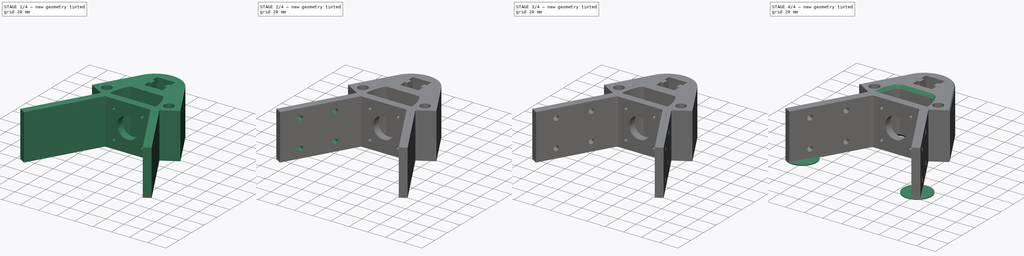
[diagram: build sequence overview — one tinted view per stage of 4, left to right]
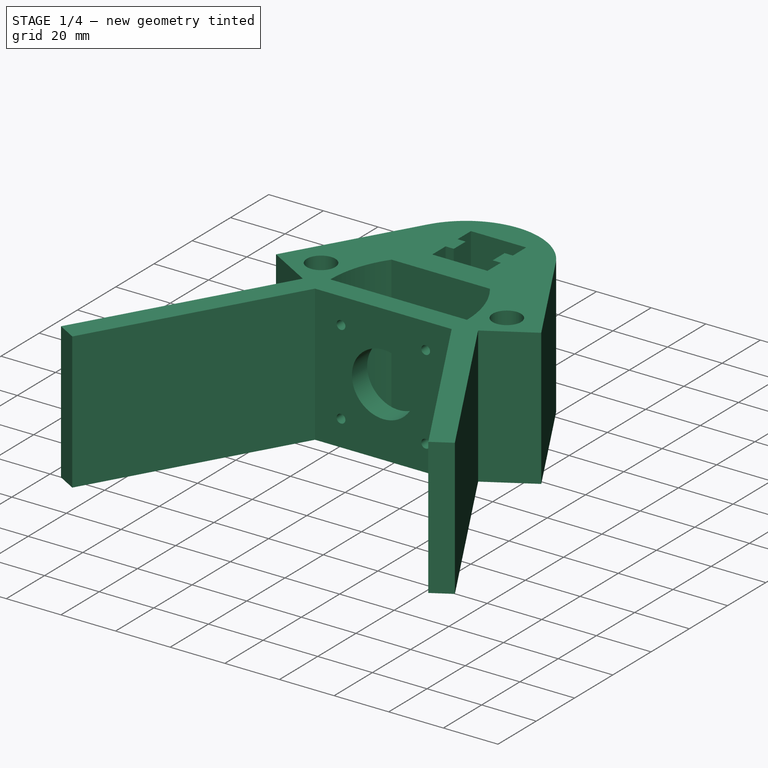
[diagram: stage 1 of 4 — iso view after this stage's code; geometry added in this stage tinted green]
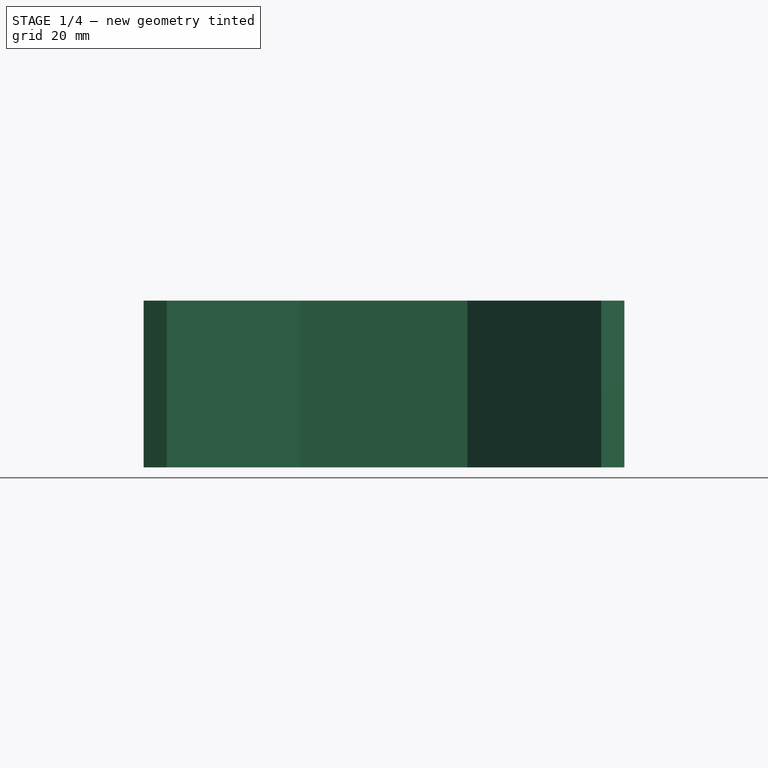
[diagram: stage 1 of 4 — front view after this stage's code; geometry added in this stage tinted green]
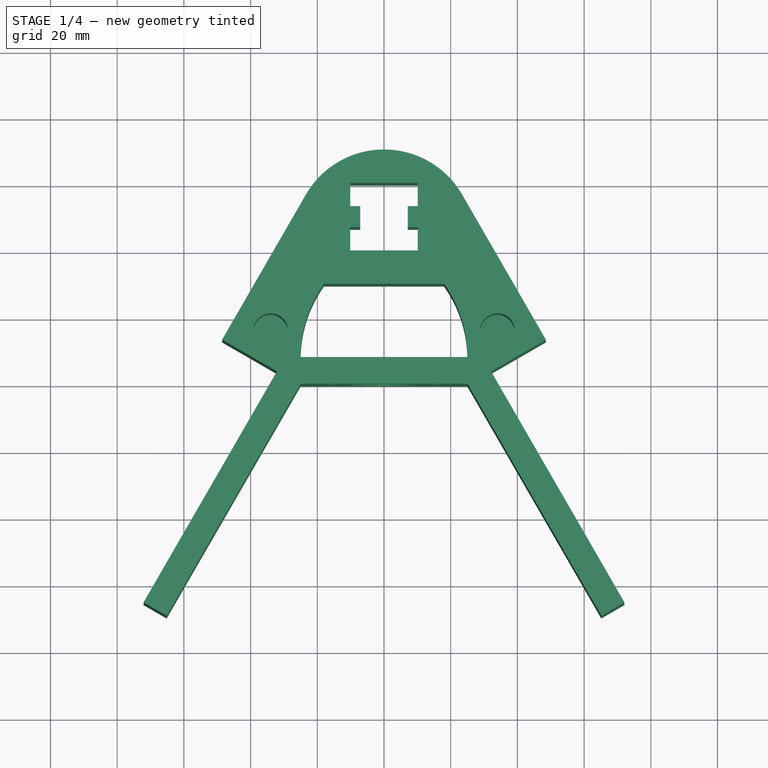
[diagram: stage 1 of 4 — top view after this stage's code; geometry added in this stage tinted green]
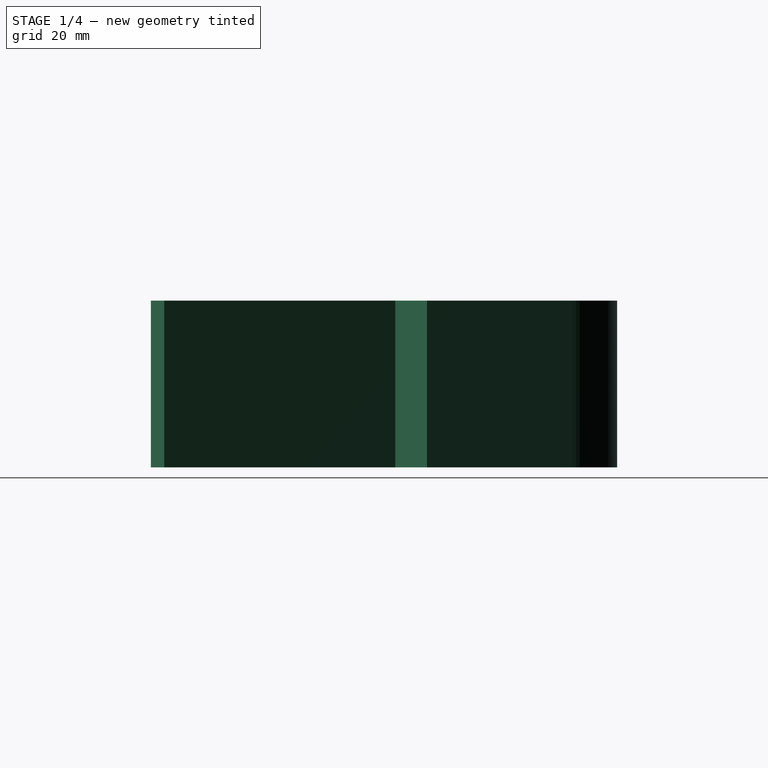
[diagram: stage 1 of 4 — right view after this stage's code; geometry added in this stage tinted green]
FCSTD DOCUMENT  (FreeCAD 0.16R6706 (Git))
Label: frame_bottom
License: All rights reserved
LicenseURL: http://en.wikipedia.org/wiki/All_rights_reserved
objects: Sketcher::SketchObject×8, PartDesign::Pocket×6, PartDesign::Pad×2, PartDesign::Fillet×2, PartDesign::Chamfer×1
note: 27 computed .brp shape members not serialized (recipe doc carries the construction recipe); baked Part::Feature solids carry a one-line shape summary decoded from their .brp

FEATURE [Sketcher::SketchObject] Sketch
  sketch-geometry (45):
    g0: LineSegment StartX=-72.0875 StartY=-65.5579 StartZ=0 EndX=-32.0875 EndY=3.72411 EndZ=0
    g1: LineSegment StartX=-32.0875 StartY=3.72411 StartZ=0 EndX=-48.542 EndY=13.2241 EndZ=0
    g2: LineSegment StartX=48.542 StartY=13.2241 StartZ=0 EndX=32.0875 EndY=3.72411 EndZ=0
    g3: LineSegment StartX=32.0875 StartY=3.72411 StartZ=0 EndX=72.0875 EndY=-65.5579 EndZ=0
    g4: LineSegment StartX=72.0875 StartY=-65.5579 StartZ=0 EndX=65.1593 EndY=-69.5579 EndZ=0
    g5: LineSegment StartX=65.1593 StartY=-69.5579 StartZ=0 EndX=25 EndY=0 EndZ=0
    g6: LineSegment StartX=25 StartY=0 StartZ=0 EndX=-25 EndY=0 EndZ=0
    g7: LineSegment StartX=-25 StartY=0 StartZ=0 EndX=-65.1593 EndY=-69.5579 EndZ=0
    g8: LineSegment StartX=-65.1593 StartY=-69.5579 StartZ=0 EndX=-72.0875 EndY=-65.5579 EndZ=0
    g9: LineSegment StartX=-25 StartY=8 StartZ=0 EndX=25 EndY=8 EndZ=0
    g10: LineSegment [constr] StartX=25 StartY=8 StartZ=0 EndX=18 EndY=30 EndZ=0
    g11: LineSegment StartX=18 StartY=30 StartZ=0 EndX=-18 EndY=30 EndZ=0
    g12: LineSegment [constr] StartX=-18 StartY=30 StartZ=0 EndX=-25 EndY=8 EndZ=0
    g13: LineSegment StartX=-10.125 StartY=60.25 StartZ=0 EndX=10.125 EndY=60.25 EndZ=0
    g14: LineSegment StartX=10.125 StartY=60.25 StartZ=0 EndX=10.125 EndY=53.25 EndZ=0
    g15: LineSegment StartX=10.125 StartY=40 StartZ=0 EndX=-10.125 EndY=40 EndZ=0
    g16: LineSegment StartX=-10.125 StartY=40 StartZ=0 EndX=-10.125 EndY=47 EndZ=0
    g17: LineSegment [constr] StartX=-25 StartY=8 StartZ=0 EndX=-25 EndY=0 EndZ=0
    g18: LineSegment [constr] StartX=-21 StartY=0 StartZ=0 EndX=-2.5 EndY=0 EndZ=0
    g19: LineSegment [constr] StartX=21 StartY=0 StartZ=0 EndX=21 EndY=-47 EndZ=0
    g20: LineSegment [constr] StartX=21 StartY=-47 StartZ=0 EndX=-21 EndY=-47 EndZ=0
    g21: LineSegment [constr] StartX=-21 StartY=-47 StartZ=0 EndX=-21 EndY=0 EndZ=0
    g22: LineSegment [constr] StartX=-2.5 StartY=25 StartZ=0 EndX=2.5 EndY=25 EndZ=0
    g23: LineSegment [constr] StartX=2.5 StartY=25 StartZ=0 EndX=2.5 EndY=0 EndZ=0
    g24: LineSegment [constr] StartX=-2.5 StartY=0 StartZ=0 EndX=-2.5 EndY=25 EndZ=0
    g25: LineSegment [constr] StartX=2.5 StartY=0 StartZ=0 EndX=21 EndY=0 EndZ=0
    g26: LineSegment [constr] StartX=0 StartY=40 StartZ=0 EndX=0 EndY=30 EndZ=0
    g27: LineSegment [constr] StartX=0 StartY=70.25 StartZ=0 EndX=0 EndY=60.25 EndZ=0
    g28: LineSegment StartX=-48.542 StartY=13.2241 StartZ=0 EndX=-23.4271 EndY=56.7244 EndZ=0
    g29: ArcOfCircle CenterX=0 CenterY=43.1987 CenterZ=0 NormalX=0 NormalY=0 NormalZ=1 Radius=27.0513 StartAngle=0.523599 EndAngle=2.61799
    g30: LineSegment StartX=23.4271 StartY=56.7244 StartZ=0 EndX=48.542 EndY=13.2241 EndZ=0
    g31: Circle [constr] CenterX=-34 CenterY=16 CenterZ=0 NormalX=0 NormalY=0 NormalZ=1 Radius=5.125
    g32: Circle [constr] CenterX=34 CenterY=16 CenterZ=0 NormalX=0 NormalY=0 NormalZ=1 Radius=5.125
    g33: LineSegment [constr] StartX=-34 StartY=16 StartZ=0 EndX=-38.8375 EndY=7.62122 EndZ=0
    g34: ArcOfCircle CenterX=13.0714 CenterY=8 CenterZ=0 NormalX=0 NormalY=0 NormalZ=1 Radius=38.0714 StartAngle=2.52549 EndAngle=3.14159
    g35: ArcOfCircle CenterX=-13.0714 CenterY=8 CenterZ=0 NormalX=0 NormalY=0 NormalZ=1 Radius=38.0714 StartAngle=0 EndAngle=0.616106
    g36: LineSegment StartX=-10.125 StartY=53.25 StartZ=0 EndX=-7.125 EndY=53.25 EndZ=0
    g37: LineSegment StartX=-7.125 StartY=53.25 StartZ=0 EndX=-7.125 EndY=47 EndZ=0
    g38: LineSegment StartX=-7.125 StartY=47 StartZ=0 EndX=-10.125 EndY=47 EndZ=0
    g39: LineSegment StartX=10.125 StartY=53.25 StartZ=0 EndX=7.125 EndY=53.25 EndZ=0
    g40: LineSegment StartX=7.125 StartY=53.25 StartZ=0 EndX=7.125 EndY=47 EndZ=0
    g41: LineSegment StartX=7.125 StartY=47 StartZ=0 EndX=10.125 EndY=47 EndZ=0
    g42: LineSegment StartX=10.125 StartY=47 StartZ=0 EndX=10.125 EndY=40 EndZ=0
    g43: LineSegment StartX=-10.125 StartY=53.25 StartZ=0 EndX=-10.125 EndY=60.25 EndZ=0
    g44: LineSegment [constr] StartX=-34 StartY=16 StartZ=0 EndX=-24.4618 EndY=14.3789 EndZ=0
  constraints (130):
    c: Coincident(g0,g1)
    c: Coincident(g2,g3)
    c: Coincident(g3,g4)
    c: Coincident(g4,g5)
    c: Coincident(g5,g6)
    c: Horizontal(g6)
    c: Coincident(g6,g7)
    c: Coincident(g7,g8)
    c: Coincident(g8,g0)
    c: Equal(g1,g2)
    c: Distance(g2) = 19
    c: Symmetric(g6,g5,g-2)
    c: Symmetric(g4,g7,g-2)
    c: Perpendicular(g8,g7)
    c: Perpendicular(g5,g4)
    c: Parallel(g5,g3)
    c: Parallel(g7,g0)
    c: Distance(g8) = 8
    c: Perpendicular(g0,g1)
    c: Angle(g7,g5) = 1.0472
    c: Horizontal(g9)
    c: Coincident(g9,g10)
    c: Coincident(g10,g11)
    c: Horizontal(g11)
    c: Coincident(g11,g12)
    c: Coincident(g12,g9)
    c: Coincident(g13,g14)
    c: Coincident(g42,g15)
    c: Coincident(g15,g16)
    c: Coincident(g43,g13)
    c: Horizontal(g13)
    c: Horizontal(g15)
    c: Vertical(g14)
    c: Vertical(g16)
    c: Symmetric(g13,g13,g-2)
    c: Symmetric(g11,g10,g-2)
    c: Symmetric(g9,g9,g-2)
    c: PointOnObject(g-1,g6)
    c: DistanceX(g6) = -50
    c: Coincident(g9,g17)
    c: PointOnObject(g17,g6)
    c: Vertical(g17)
    c: Equal(g17,g8)
    c: Coincident(g25,g19)
    c: Coincident(g19,g20)
    c: Coincident(g20,g21)
    c: Coincident(g21,g18)
    c: Horizontal(g18)
    c: Horizontal(g20)
    c: Vertical(g19)
    c: Vertical(g21)
    c: DistanceY(g21) = 47
    c: Symmetric(g20,g19,g-2)
    c: Coincident(g22,g23)
    c: Coincident(g24,g22)
    c: Horizontal(g22)
    c: Vertical(g23)
    c: Vertical(g24)
    c: Tangent(g18,g25)
    c: Coincident(g23,g25)
    c: Coincident(g24,g18)
    c: DistanceX(g18,g19) = 42
    c: DistanceX(g22) = 5
    c: DistanceY(g23) = -25
    c: PointOnObject(g19,g6)
    c: Symmetric(g18,g23,g-2)
    c: PointOnObject(g26,g15)
    c: PointOnObject(g26,g11)
    c: Vertical(g26)
    c: PointOnObject(g26,g-2)
    c: PointOnObject(g27,g13)
    c: Vertical(g27)
    c: PointOnObject(g27,g-2)
    c: Equal(g27,g26)
    c: DistanceY(g6,g11) = 30
    c: Coincident(g1,g28)
    c: Tangent(g28,g29) = 1.5708
    c: Tangent(g29,g30) = 1.5708
    c: Perpendicular(g2,g30)
    c: Coincident(g30,g2)
    c: Perpendicular(g28,g1)
    c: Symmetric(g29,g28,g-2)
    c: Symmetric(g1,g2,g-2)
    c: PointOnObject(g27,g29)
    c: Equal(g32,g31)
    c: Radius(g32) = 5.125
    c: Symmetric(g32,g31,g-2)
    c: DistanceY(g31,g9) = -8
    c: DistanceY(g27) = -10
    c: Distance(g0) = 80
    c: Coincident(g33,g31)
    c: PointOnObject(g33,g1)
    c: Perpendicular(g1,g33)
    c: Coincident(g34,g9)
    c: Coincident(g34,g11)
    c: Perpendicular(g34,g9)
    c: Coincident(g35,g9)
    c: Coincident(g35,g10)
    c: Perpendicular(g35,g9)
    c: Coincident(g36,g37)
    c: Coincident(g37,g38)
    c: Horizontal(g36)
    c: Horizontal(g38)
    c: Vertical(g37)
    c: Coincident(g39,g40)
    c: Coincident(g40,g41)
    c: Horizontal(g39)
    c: Horizontal(g41)
    c: Vertical(g40)
    c: Tangent(g14,g42)
    c: DistanceY(g13,g15) = -20.25
    c: Coincident(g39,g14)
    c: Coincident(g41,g42)
    c: Tangent(g16,g43)
    c: Coincident(g36,g43)
    c: Coincident(g38,g16)
    c: Equal(g43,g16)
    c: DistanceY(g37) = -6.25
    c: Equal(g40,g37)
    c: PointOnObject(g39,g36)
    c: DistanceX(g13) = 20.25
    c: Equal(g36,g39)
    c: DistanceX(g31,g32) = 68
    c: Coincident(g44,g31)
    c: PointOnObject(g44,g34)
    c: Perpendicular(g34,g44)
    c: Equal(g44,g33)
    c: DistanceX(g36) = 3
    c: DistanceX(g9) = 50
    c: DistanceX(g11) = -36
FEATURE [PartDesign::Pad] Pad
  Length = 50
  Length2 = 100
  Midplane = true
  Sketch = -> Sketch
  Type = 0
FEATURE [Sketcher::SketchObject] Sketch001
  Placement = pos=(0,0,0) rot=(1,0,0;1.5708rad)
  Support = -> Pad [Face6]
  sketch-geometry (5):
    g0: Circle CenterX=0 CenterY=0 CenterZ=0 NormalX=0 NormalY=0 NormalZ=1 Radius=11.5
    g1: Circle CenterX=15.5 CenterY=15.5 CenterZ=0 NormalX=0 NormalY=0 NormalZ=1 Radius=1.6
    g2: Circle CenterX=-15.5 CenterY=15.5 CenterZ=0 NormalX=0 NormalY=0 NormalZ=1 Radius=1.6
    g3: Circle CenterX=-15.5 CenterY=-15.5 CenterZ=0 NormalX=0 NormalY=0 NormalZ=1 Radius=1.6
    g4: Circle CenterX=15.5 CenterY=-15.5 CenterZ=0 NormalX=0 NormalY=0 NormalZ=1 Radius=1.6
  constraints (11):
    c: Coincident(g0,g-1)
    c: Radius(g0) = 11.5
    c: Symmetric(g1,g2,g-2)
    c: Symmetric(g4,g3,g-2)
    c: Symmetric(g4,g1,g-1)
    c: DistanceY(g1,g4) = -31
    c: DistanceX(g1,g2) = -31
    c: Equal(g1,g2)
    c: Equal(g2,g3)
    c: Equal(g3,g4)
    c: Radius(g1) = 1.6
FEATURE [PartDesign::Pocket] Pocket
  Length = 8
  Sketch = -> Sketch001
  Type = 0
FEATURE [Sketcher::SketchObject] Sketch002
  ExternalGeometry = -> [Pocket]
  Placement = pos=(0,0,25) rot=(0,0,1;0rad)
  Support = -> Pocket [Face5]
  sketch-geometry (4):
    g0: Circle CenterX=34 CenterY=16 CenterZ=0 NormalX=0 NormalY=0 NormalZ=1 Radius=5.18
    g1: Circle CenterX=-34 CenterY=16 CenterZ=0 NormalX=0 NormalY=0 NormalZ=1 Radius=5.18
    g2: LineSegment [constr] StartX=-34 StartY=16 StartZ=0 EndX=-24.4618 EndY=14.3789 EndZ=0
    g3: LineSegment [constr] StartX=-34 StartY=16 StartZ=0 EndX=-38.8375 EndY=7.62122 EndZ=0
  constraints (11):
    c: Symmetric(g1,g0,g-2)
    c: DistanceX(g0,g1) = -68
    c: Equal(g1,g0)
    c: Radius(g0) = 5.18
    c: Coincident(g2,g1)
    c: PointOnObject(g2,g-3)
    c: Coincident(g3,g1)
    c: PointOnObject(g3,g-5)
    c: Perpendicular(g-5,g3)
    c: Perpendicular(g-3,g2)
    c: Equal(g2,g3)
FEATURE [PartDesign::Pocket] Pocket001
  Length = 36
  Sketch = -> Sketch002
  Type = 0
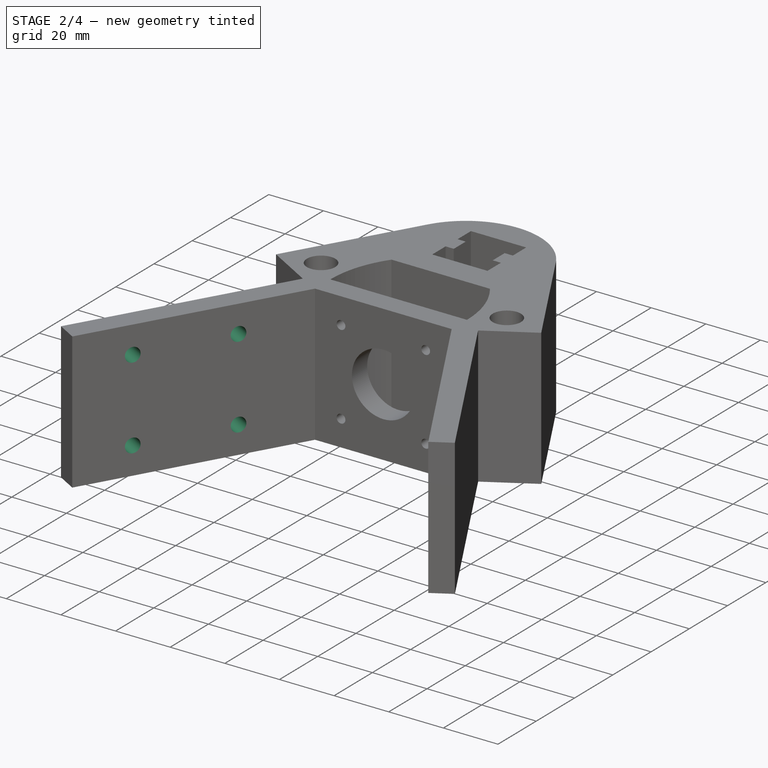
[diagram: stage 2 of 4 — iso view after this stage's code; geometry added in this stage tinted green]
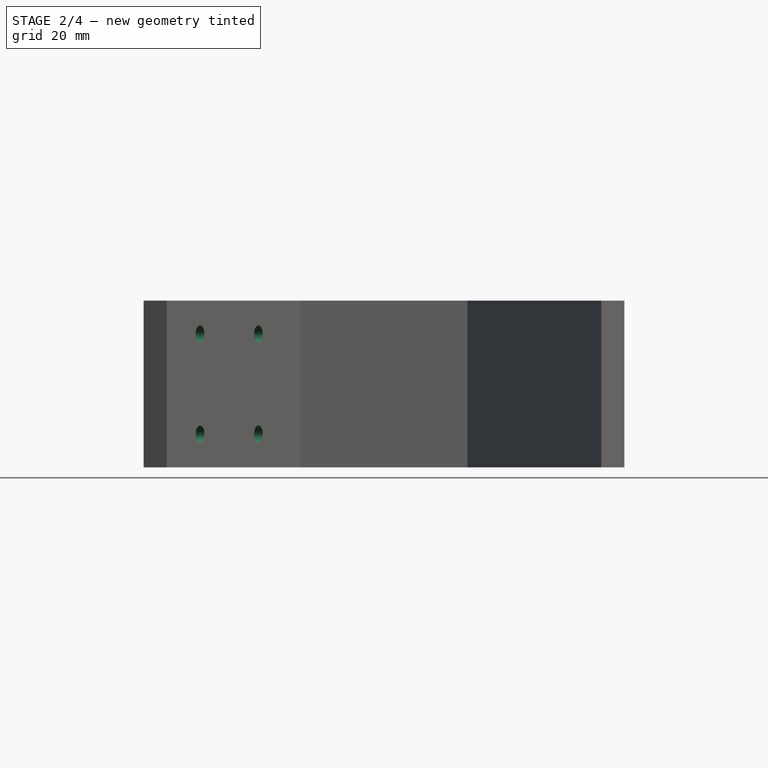
[diagram: stage 2 of 4 — front view after this stage's code; geometry added in this stage tinted green]
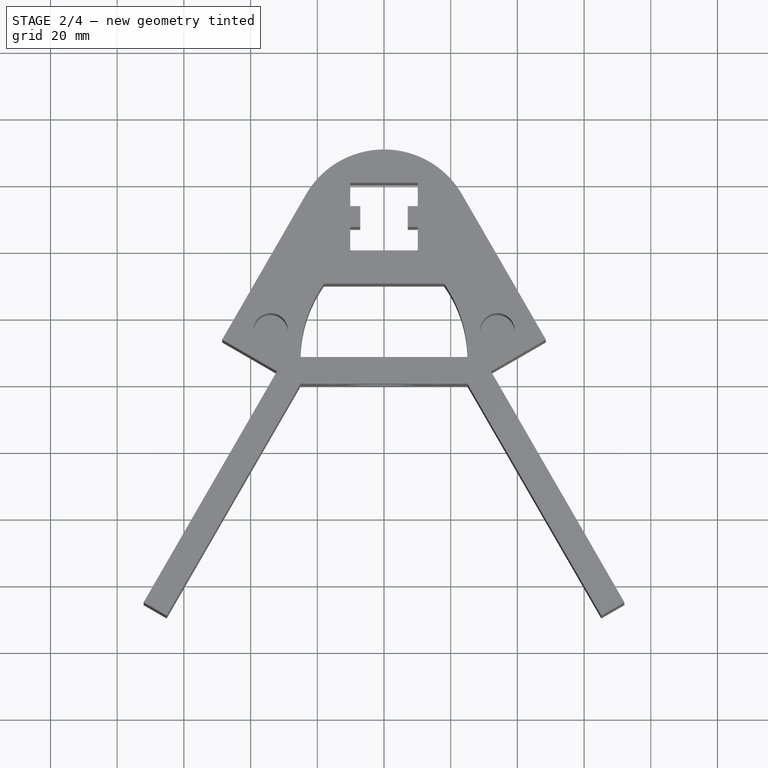
[diagram: stage 2 of 4 — top view after this stage's code; geometry added in this stage tinted green]
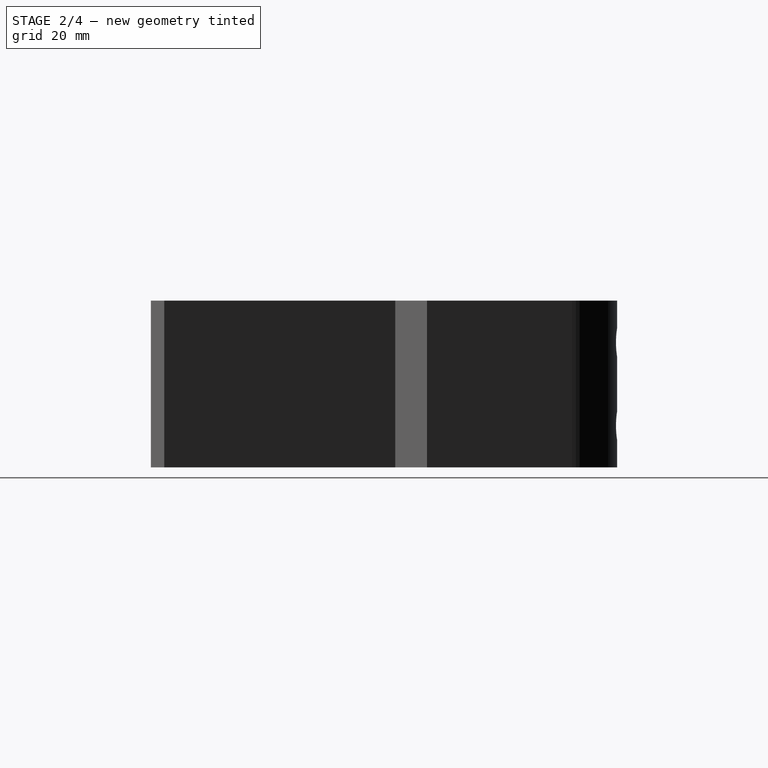
[diagram: stage 2 of 4 — right view after this stage's code; geometry added in this stage tinted green]
FEATURE [Sketcher::SketchObject] Sketch003
  Placement = pos=(0,60.25,0) rot=(1,0,0;1.5708rad)
  Support = -> Pocket001 [Face20]
  sketch-geometry (2):
    g0: Circle CenterX=0 CenterY=12.5 CenterZ=0 NormalX=0 NormalY=0 NormalZ=1 Radius=2.625
    g1: Circle CenterX=0 CenterY=-12.5 CenterZ=0 NormalX=0 NormalY=0 NormalZ=1 Radius=2.625
  constraints (6):
    c: PointOnObject(g0,g-2)
    c: PointOnObject(g1,g-2)
    c: Equal(g1,g0)
    c: Radius(g0) = 2.625
    c: Symmetric(g0,g1,g-1)
    c: DistanceY(g0,g1) = -25
FEATURE [PartDesign::Pocket] Pocket002
  Length = 6
  Sketch = -> Sketch003
  Type = 0
FEATURE [Sketcher::SketchObject] Sketch004
  ExternalGeometry = -> [Pocket002]
  Placement = pos=(0,66.25,0) rot=(1,0,0;1.5708rad)
  Support = -> Pocket002 [Face42]
  sketch-geometry (2):
    g0: Circle CenterX=0 CenterY=12.5 CenterZ=0 NormalX=0 NormalY=0 NormalZ=1 Radius=4.3
    g1: Circle CenterX=0 CenterY=-12.5 CenterZ=0 NormalX=0 NormalY=0 NormalZ=1 Radius=4.3
  constraints (4):
    c: Coincident(g-3,g0)
    c: Coincident(g-4,g1)
    c: Equal(g1,g0)
    c: Radius(g0) = 4.3
FEATURE [PartDesign::Pocket] Pocket003
  Length = 5
  Sketch = -> Sketch004
  Type = 0
FEATURE [Sketcher::SketchObject] Sketch005
  ExternalGeometry = -> [Pocket003]
  Placement = pos=(-25.6782,14.8253,0) rot=(-0.377964,0.654654,0.654654;3.86433rad)
  Support = -> Pocket003 [Face15]
  sketch-geometry (4):
    g0: Circle CenterX=37.8186 CenterY=15 CenterZ=0 NormalX=0 NormalY=0 NormalZ=1 Radius=2.6
    g1: Circle CenterX=72.8186 CenterY=15 CenterZ=0 NormalX=0 NormalY=0 NormalZ=1 Radius=2.6
    g2: Circle CenterX=37.8186 CenterY=-15 CenterZ=0 NormalX=0 NormalY=0 NormalZ=1 Radius=2.6
    g3: Circle CenterX=72.8186 CenterY=-15 CenterZ=0 NormalX=0 NormalY=0 NormalZ=1 Radius=2.6
  constraints (10):
    c: Symmetric(g0,g2,g-1)
    c: Symmetric(g3,g1,g-1)
    c: Equal(g1,g0)
    c: Equal(g0,g2)
    c: Equal(g2,g3)
    c: DistanceX(g-3,g0) = 25
    c: DistanceX(g1,g-4) = 20
    c: Radius(g0) = 2.6
    c: DistanceY(g0,g-3) = 10
    c: DistanceY(g1,g-4) = 10
FEATURE [PartDesign::Pocket] Pocket004
  Length = 8
  Sketch = -> Sketch005
  Type = 0
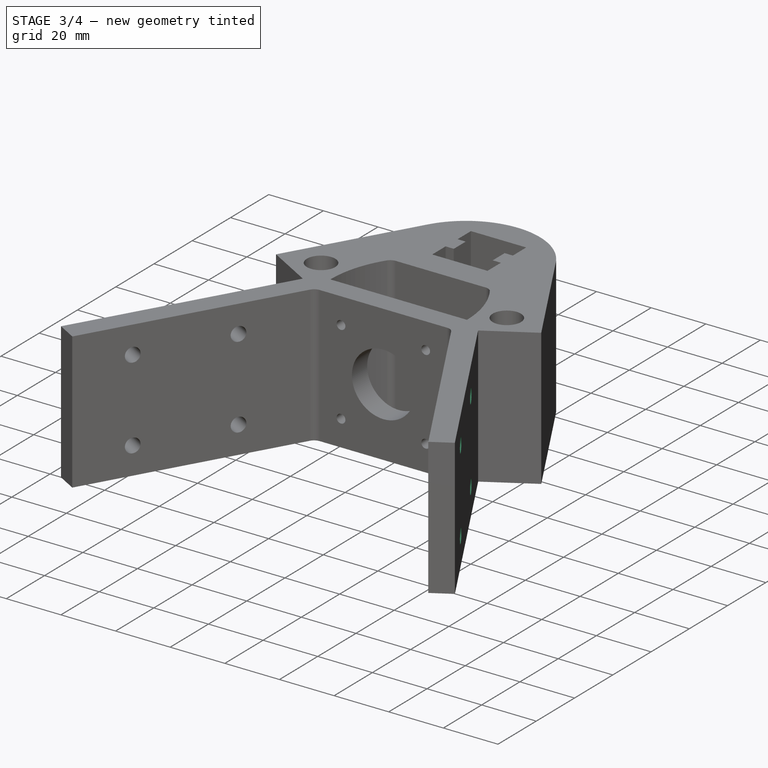
[diagram: stage 3 of 4 — iso view after this stage's code; geometry added in this stage tinted green]
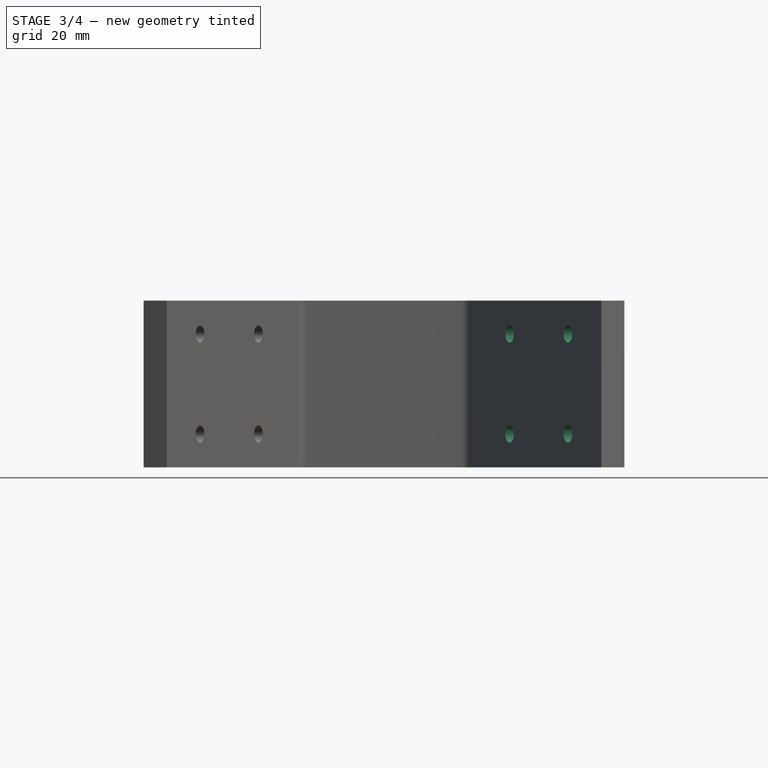
[diagram: stage 3 of 4 — front view after this stage's code; geometry added in this stage tinted green]
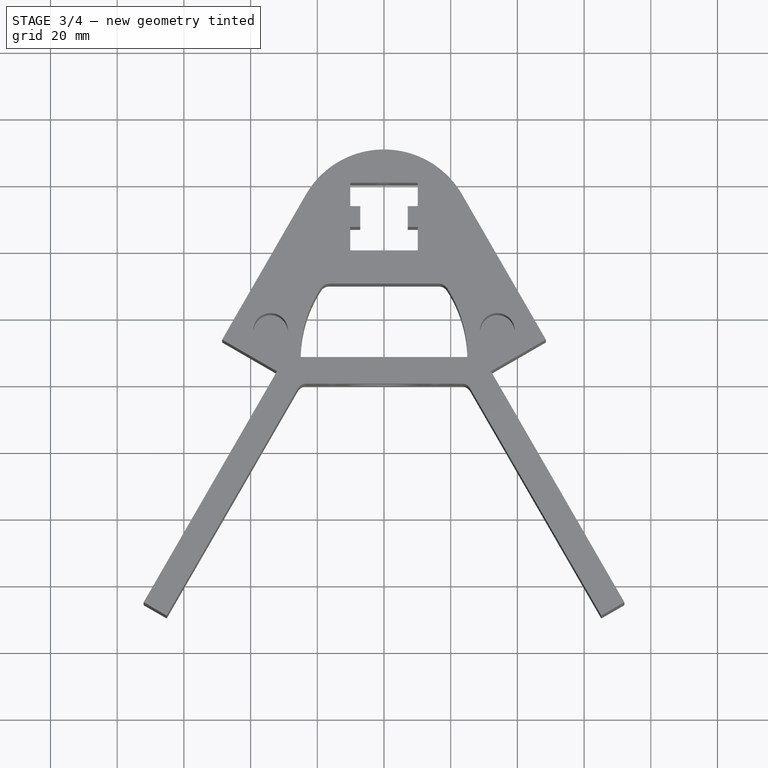
[diagram: stage 3 of 4 — top view after this stage's code; geometry added in this stage tinted green]
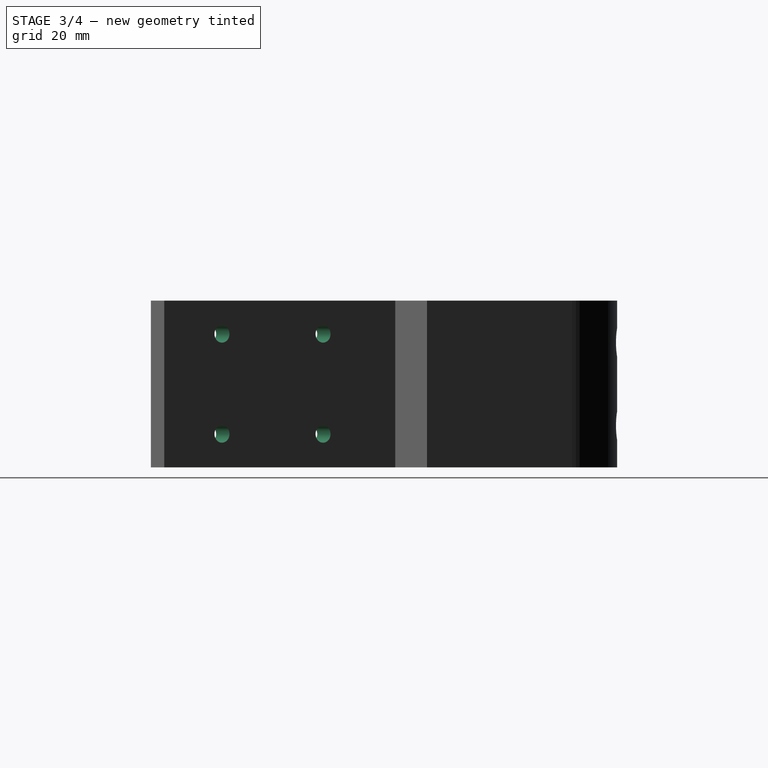
[diagram: stage 3 of 4 — right view after this stage's code; geometry added in this stage tinted green]
FEATURE [Sketcher::SketchObject] Sketch006
  ExternalGeometry = -> [Pocket004]
  Placement = pos=(25.6782,14.8253,0) rot=(0.377964,0.654654,0.654654;2.41886rad)
  Support = -> Pocket004 [Face9]
  sketch-geometry (4):
    g0: Circle CenterX=-37.8186 CenterY=15 CenterZ=0 NormalX=0 NormalY=0 NormalZ=1 Radius=2.6
    g1: Circle CenterX=-72.8186 CenterY=15 CenterZ=0 NormalX=0 NormalY=0 NormalZ=1 Radius=2.6
    g2: Circle CenterX=-37.8186 CenterY=-15 CenterZ=0 NormalX=0 NormalY=0 NormalZ=1 Radius=2.6
    g3: Circle CenterX=-72.8186 CenterY=-15 CenterZ=0 NormalX=0 NormalY=0 NormalZ=1 Radius=2.6
  constraints (10):
    c: Symmetric(g0,g2,g-1)
    c: Symmetric(g3,g1,g-1)
    c: Equal(g1,g0)
    c: Equal(g0,g2)
    c: Equal(g2,g3)
    c: DistanceX(g1,g-4) = -20
    c: DistanceX(g0,g-3) = 25
    c: Radius(g0) = 2.6
    c: DistanceY(g1,g-4) = 10
    c: DistanceY(g0,g-3) = 10
FEATURE [PartDesign::Pocket] Pocket005
  Length = 8
  Sketch = -> Sketch006
  Type = 0
FEATURE [PartDesign::Fillet] Fillet
  Base = -> Pocket005 [Edge105,Edge106,Edge76,Edge81]
  Radius = 3
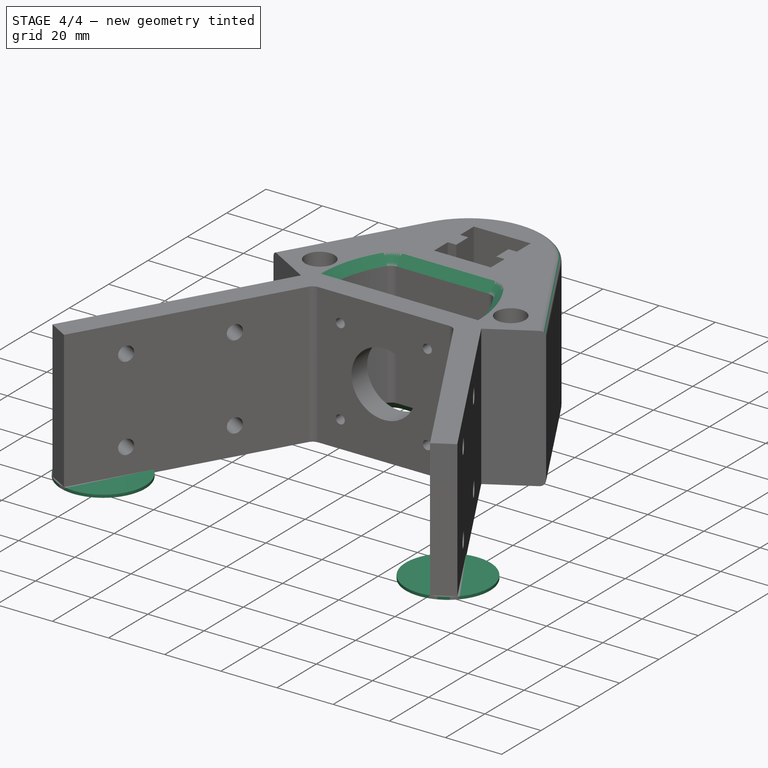
[diagram: stage 4 of 4 — iso view after this stage's code; geometry added in this stage tinted green]
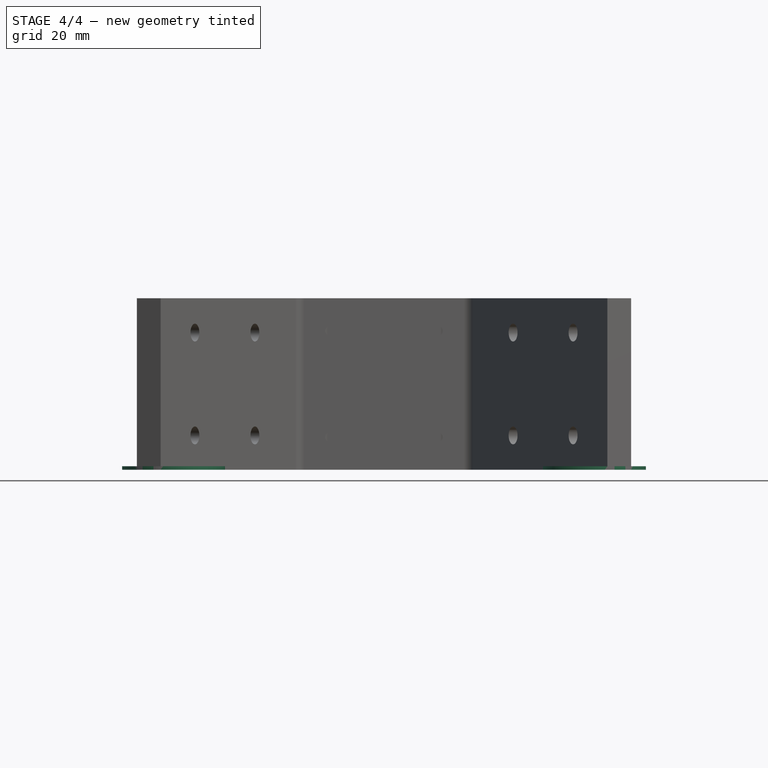
[diagram: stage 4 of 4 — front view after this stage's code; geometry added in this stage tinted green]
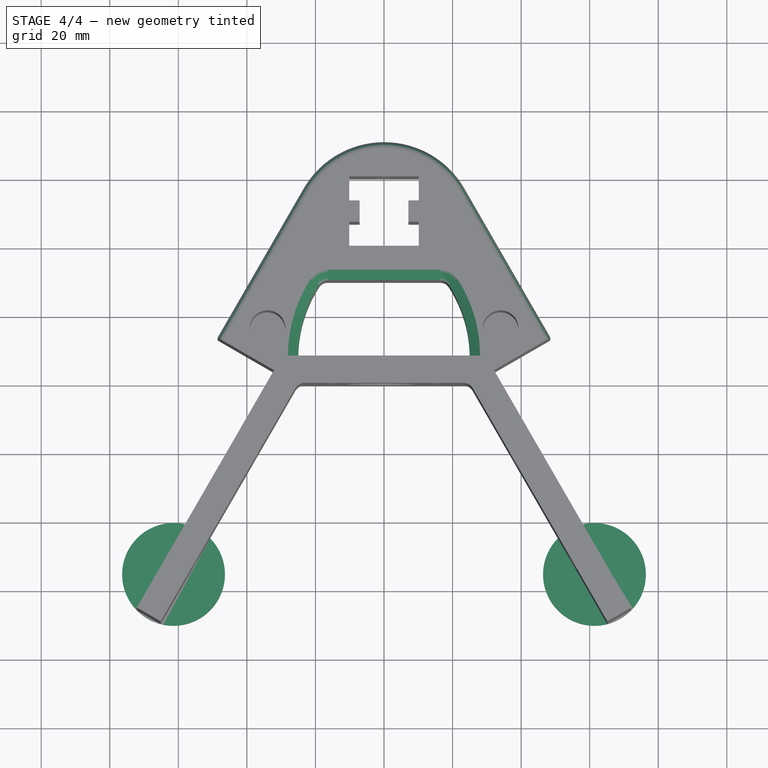
[diagram: stage 4 of 4 — top view after this stage's code; geometry added in this stage tinted green]
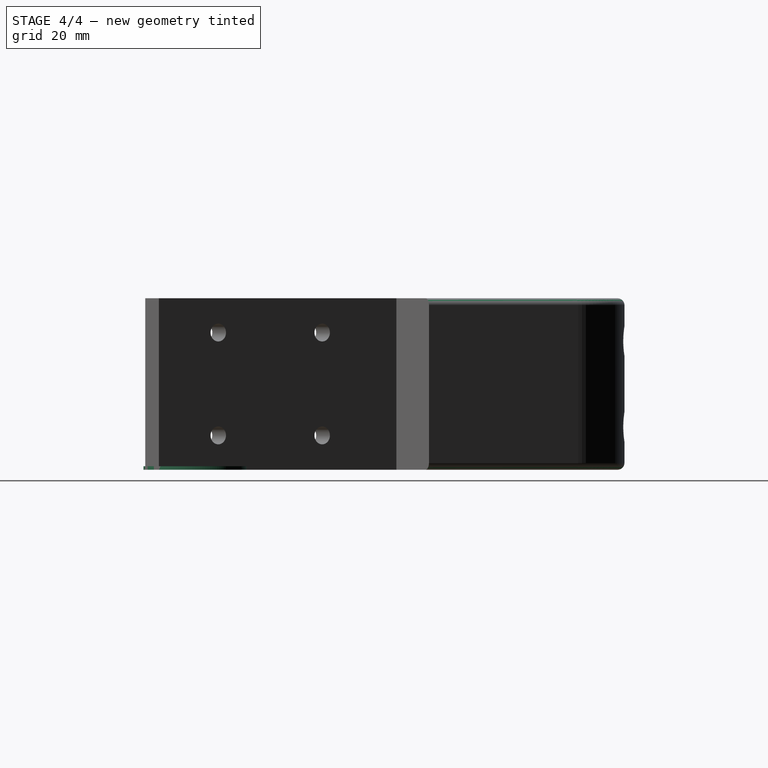
[diagram: stage 4 of 4 — right view after this stage's code; geometry added in this stage tinted green]
FEATURE [PartDesign::Chamfer] Chamfer
  Base = -> Fillet [Edge123,Edge30]
  Size = 3
FEATURE [PartDesign::Fillet] Fillet001
  Base = -> Chamfer [Edge19,Edge96]
  Radius = 2
FEATURE [Sketcher::SketchObject] Sketch007
  ExternalGeometry = -> [Fillet001]
  Placement = pos=(0,0,-25) rot=(1,0,0;3.14159rad)
  Support = -> Fillet001 [Face1]
  sketch-geometry (2):
    g0: Circle CenterX=-61.395 CenterY=55.0379 CenterZ=0 NormalX=0 NormalY=0 NormalZ=1 Radius=15
    g1: Circle CenterX=61.395 CenterY=55.0379 CenterZ=0 NormalX=0 NormalY=0 NormalZ=1 Radius=15
  constraints (5):
    c: PointOnObject(g-3,g1)
    c: Radius(g1) = 15
    c: PointOnObject(g-3,g1)
    c: Equal(g0,g1)
    c: Symmetric(g0,g1,g-2)
FEATURE [PartDesign::Pad] Pad001
  Length = 1
  Length2 = 100
  Reversed = true
  Sketch = -> Sketch007
  Type = 0
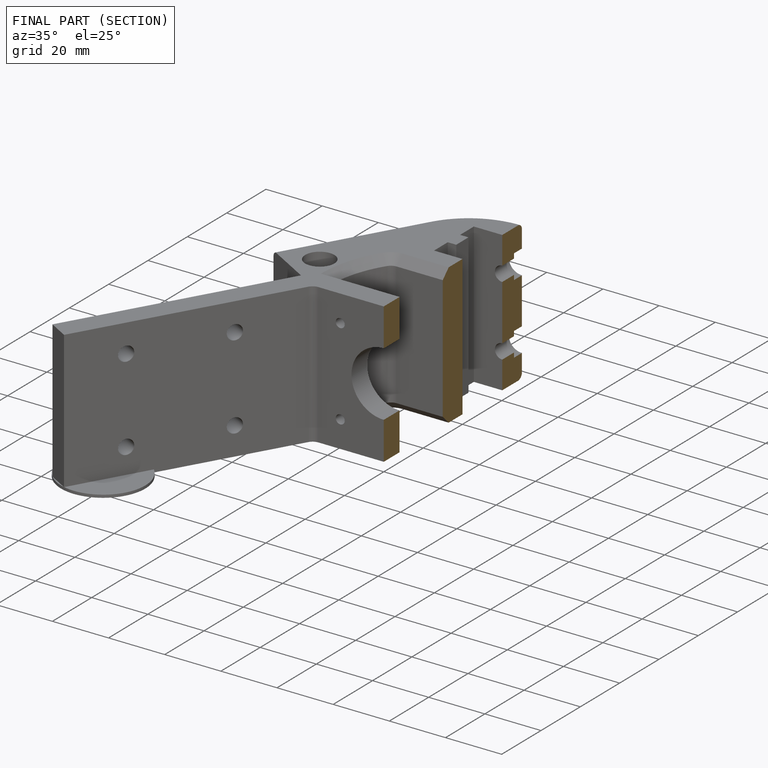
[diagram: finished part — half-section view (interior)]
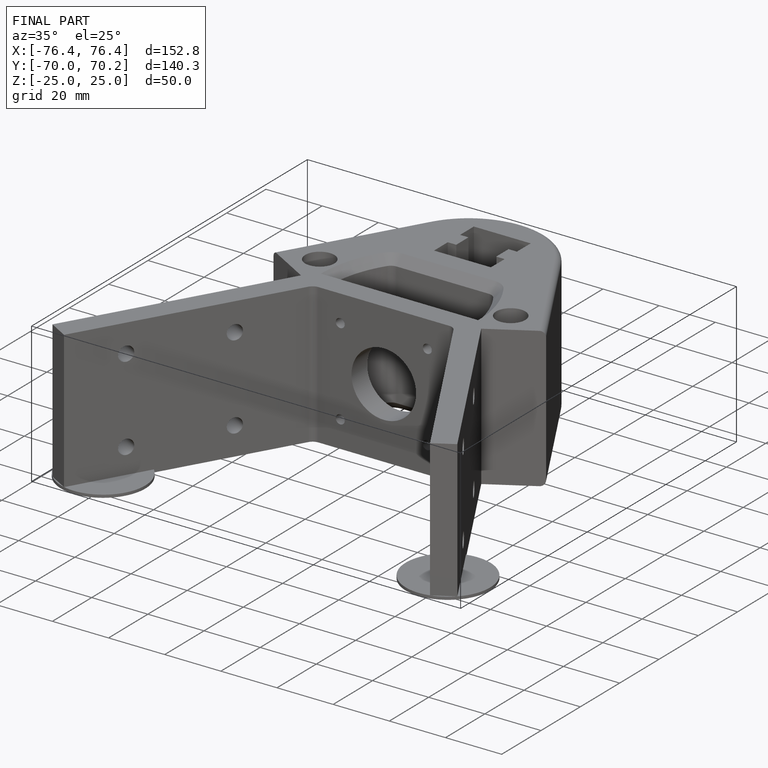
[diagram: finished part — iso view with bounding-box wireframe]
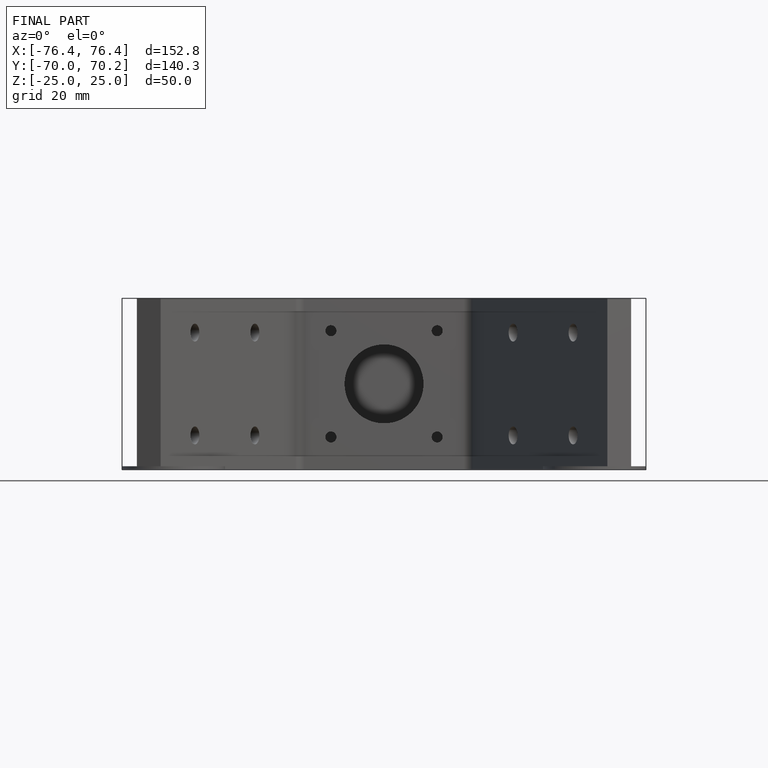
[diagram: finished part — front view with bounding-box wireframe]
